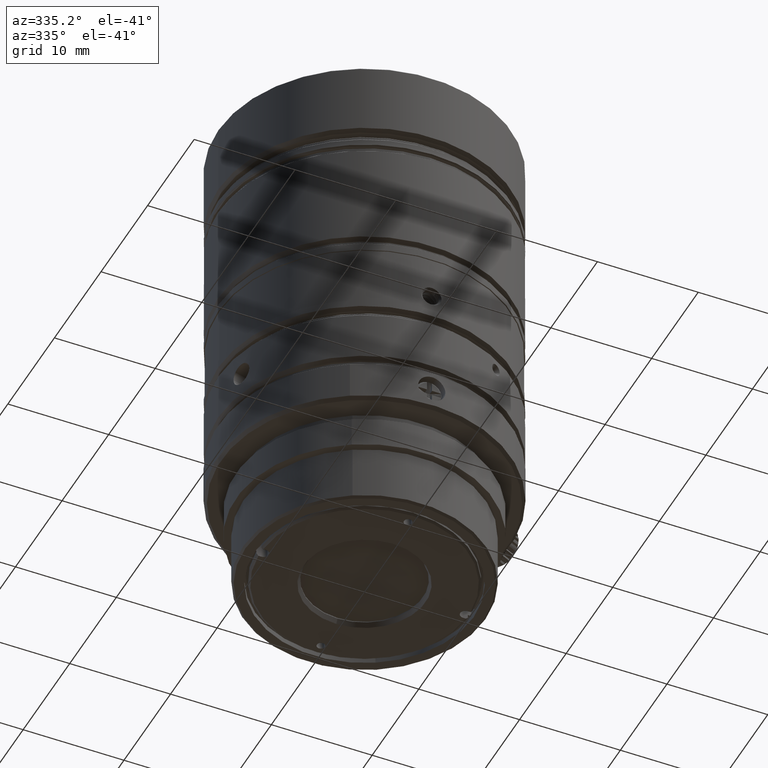
[diagram: clean part render]
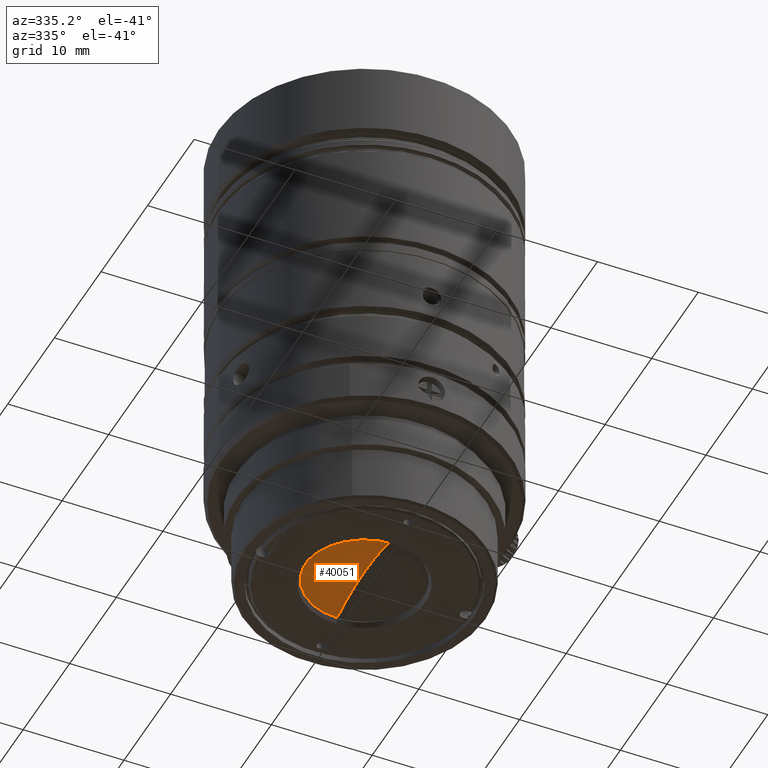
[diagram: same view with one face highlighted and labeled with its STEP entity id]
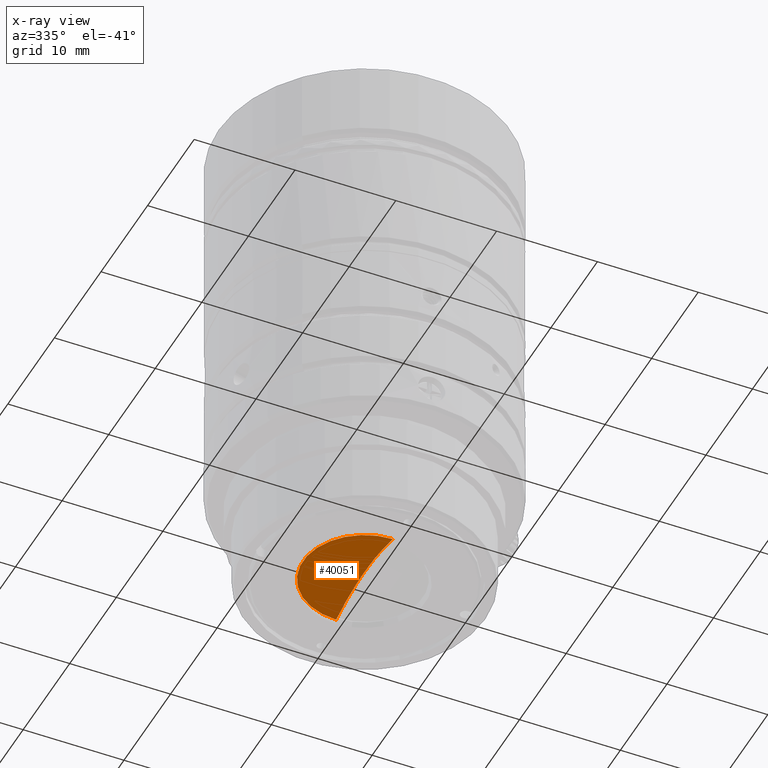
[diagram: x-ray of the same camera — body ghosted, the highlighted face saturated]
A machine part, auxiliary view. The second image highlights one B-rep face of the part: STEP entity #40051.
The next image is the same camera in x-ray: the body ghosted, the highlighted face saturated — about 0% of this face is hidden behind the body in this view.
In plain terms, the highlighted spherical surface has radius 21.0235 mm.
Its self-contained STEP definition (entity closure, byte-faithful):
#54 = DIRECTION ( 'NONE',  ( 8.509366289908873242E-08, 0.000000000000000000, 0.9999999999999964473 ) ) ;
#624 = DIRECTION ( 'NONE',  ( -0.9999999999999963363, -2.400801003384431502E-15, 8.509366289908871919E-08 ) ) ;
#1284 = CARTESIAN_POINT ( 'NONE',  ( -7.166304020469100689E-07, 7.359530780657280271E-07, -5.503258096444990422 ) ) ;
#3076 = CARTESIAN_POINT ( 'NONE',  ( -6.398759181119298971E-07, 7.105043834293757516E-07, -4.601258096444901469 ) ) ;
#5345 = DIRECTION ( 'NONE',  ( -0.9999999999999964473, -2.523265683299168622E-15, 8.509366289908871919E-08 ) ) ;
#6560 = AXIS2_PLACEMENT_3D ( 'NONE', #24153, #5345, #54 ) ;
#8298 = EDGE_LOOP ( 'NONE', ( #50762, #40587, #27873 ) ) ;
#10269 = CARTESIAN_POINT ( 'NONE',  ( -2.428842540070929783E-06, 1.303653613789209906E-06, -25.62475809644489999 ) ) ;
#10544 = AXIS2_PLACEMENT_3D ( 'NONE', #1284, #38370, #25706 ) ;
#10771 = CIRCLE ( 'NONE', #32815, 21.02349999999999497 ) ;
#20939 = DIRECTION ( 'NONE',  ( -3.934552346436261136E-23, -0.9999999999999996669, -2.821362908748007841E-08 ) ) ;
#22562 = CIRCLE ( 'NONE', #6560, 21.02349999999999852 ) ;
#24153 = CARTESIAN_POINT ( 'NONE',  ( -2.428842540070929783E-06, 1.303653613789209906E-06, -25.62475809644489999 ) ) ;
#25706 = DIRECTION ( 'NONE',  ( -0.9999999999999963363, 0.000000000000000000, 8.509366289705760036E-08 ) ) ;
#26092 = VERTEX_POINT ( 'NONE', #38645 ) ;
#27873 = ORIENTED_EDGE ( 'NONE', *, *, #47896, .T. ) ;
#29289 = EDGE_CURVE ( 'NONE', #50772, #26092, #22562, .T. ) ;
#29685 = DIRECTION ( 'NONE',  ( 0.9999999999999964473, 2.400801003384432685E-15, -8.509366289908871919E-08 ) ) ;
#32542 = CIRCLE ( 'NONE', #10544, 6.092026756343152272 ) ;
#32815 = AXIS2_PLACEMENT_3D ( 'NONE', #10269, #29685, #58521 ) ;
#38370 = DIRECTION ( 'NONE',  ( -8.509366289705756065E-08, 2.821362899005938800E-08, -0.9999999999999960032 ) ) ;
#38645 = CARTESIAN_POINT ( 'NONE',  ( -7.166304027929738301E-07, 6.092027492296229418, -5.503257924566806736 ) ) ;
#40051 = ADVANCED_FACE ( 'NONE', ( #44745 ), #58244, .F. ) ;
#40587 = ORIENTED_EDGE ( 'NONE', *, *, #60409, .T. ) ;
#44745 = FACE_OUTER_BOUND ( 'NONE', #8298, .T. ) ;
#47896 = EDGE_CURVE ( 'NONE', #49684, #26092, #32542, .T. ) ;
#49684 = VERTEX_POINT ( 'NONE', #57809 ) ;
#50762 = ORIENTED_EDGE ( 'NONE', *, *, #29289, .F. ) ;
#50772 = VERTEX_POINT ( 'NONE', #3076 ) ;
#53240 = CARTESIAN_POINT ( 'NONE',  ( -2.428842540070929783E-06, 1.303653613789209906E-06, -25.62475809644489999 ) ) ;
#57809 = CARTESIAN_POINT ( 'NONE',  ( -7.166304020469161040E-07, -6.092026020390073349, -5.503258268323173219 ) ) ;
#58244 = SPHERICAL_SURFACE ( 'NONE', #60841, 21.02350000000000207 ) ;
#58521 = DIRECTION ( 'NONE',  ( -8.509366289908874566E-08, 0.000000000000000000, -0.9999999999999964473 ) ) ;
#60409 = EDGE_CURVE ( 'NONE', #50772, #49684, #10771, .T. ) ;
#60841 = AXIS2_PLACEMENT_3D ( 'NONE', #53240, #624, #20939 ) ;